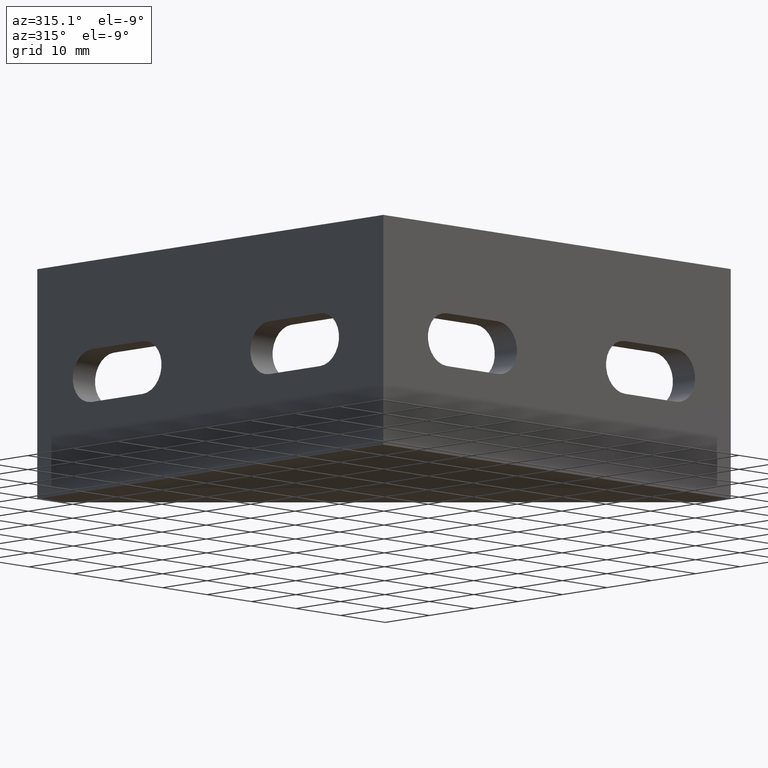
[diagram: clean part render]
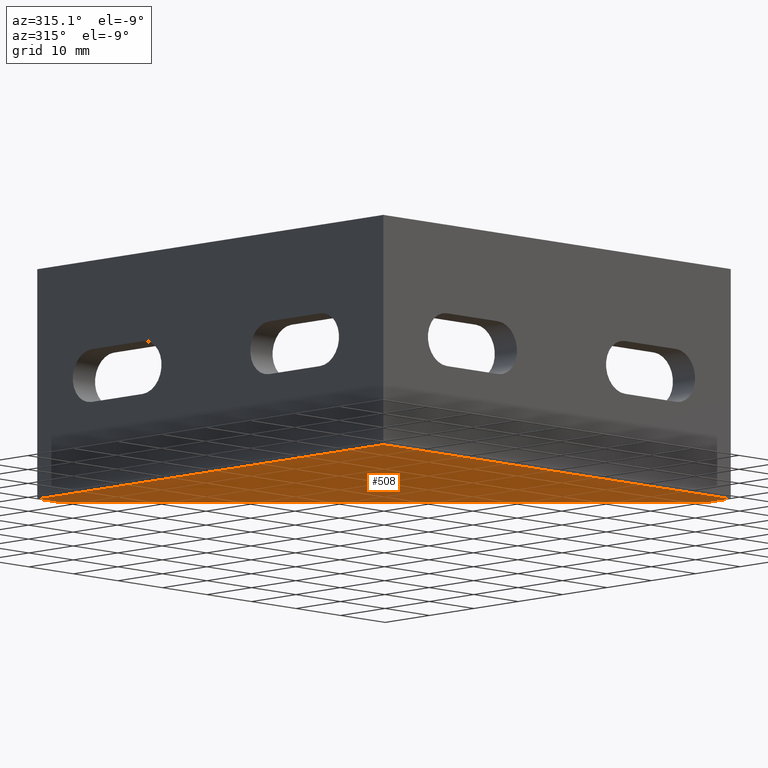
[diagram: same view with one face highlighted and labeled with its STEP entity id]
A machine part, auxiliary view. The second image highlights one B-rep face of the part: STEP entity #508.
In plain terms, the highlighted planar face has unit normal (0, 0, -1).
Its self-contained STEP definition (entity closure, byte-faithful):
#34=PLANE('',#570);
#60=FACE_OUTER_BOUND('',#88,.T.);
#88=EDGE_LOOP('',(#424,#425,#426,#427,#428));
#133=LINE('',#817,#187);
#142=LINE('',#836,#196);
#143=LINE('',#837,#197);
#144=LINE('',#839,#198);
#145=LINE('',#840,#199);
#187=VECTOR('',#677,10.);
#196=VECTOR('',#692,10.);
#197=VECTOR('',#693,10.);
#198=VECTOR('',#694,10.);
#199=VECTOR('',#695,10.);
#257=VERTEX_POINT('',#815);
#258=VERTEX_POINT('',#816);
#264=VERTEX_POINT('',#834);
#265=VERTEX_POINT('',#835);
#266=VERTEX_POINT('',#838);
#319=EDGE_CURVE('',#257,#258,#133,.T.);
#328=EDGE_CURVE('',#264,#265,#142,.T.);
#329=EDGE_CURVE('',#265,#258,#143,.T.);
#330=EDGE_CURVE('',#257,#266,#144,.T.);
#331=EDGE_CURVE('',#266,#264,#145,.T.);
#424=ORIENTED_EDGE('',*,*,#328,.T.);
#425=ORIENTED_EDGE('',*,*,#329,.T.);
#426=ORIENTED_EDGE('',*,*,#319,.F.);
#427=ORIENTED_EDGE('',*,*,#330,.T.);
#428=ORIENTED_EDGE('',*,*,#331,.T.);
#508=ADVANCED_FACE('',(#60),#34,.T.);
#570=AXIS2_PLACEMENT_3D('',#833,#690,#691);
#677=DIRECTION('',(-0.707106781186548,0.707106781186548,0.));
#690=DIRECTION('center_axis',(0.,0.,-1.));
#691=DIRECTION('ref_axis',(-1.,0.,0.));
#692=DIRECTION('',(0.,1.,0.));
#693=DIRECTION('',(1.,0.,0.));
#694=DIRECTION('',(0.,-1.,0.));
#695=DIRECTION('',(-1.,0.,0.));
#815=CARTESIAN_POINT('',(78.,5.,-18.5));
#816=CARTESIAN_POINT('',(5.,78.,-18.5));
#817=CARTESIAN_POINT('',(78.,5.,-18.5));
#833=CARTESIAN_POINT('Origin',(2.5,39.,-18.5));
#834=CARTESIAN_POINT('',(0.,0.,-18.5));
#835=CARTESIAN_POINT('',(0.,78.,-18.5));
#836=CARTESIAN_POINT('',(0.,5.,-18.5));
#837=CARTESIAN_POINT('',(5.,78.,-18.5));
#838=CARTESIAN_POINT('',(78.,0.,-18.5));
#839=CARTESIAN_POINT('',(78.,0.,-18.5));
#840=CARTESIAN_POINT('',(0.,0.,-18.5));